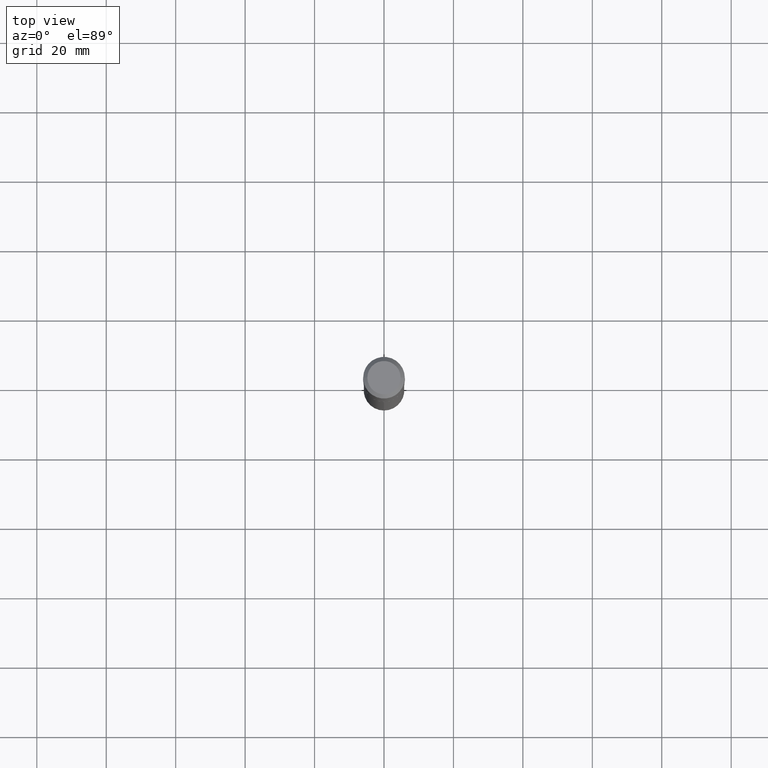
[diagram: clean part render]
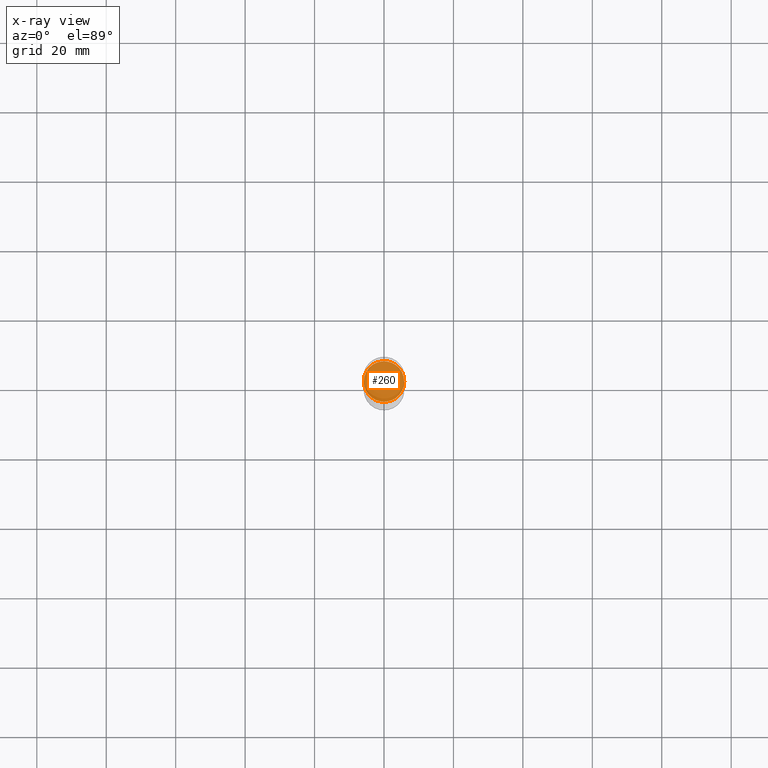
[diagram: x-ray — body ghosted, one internal face saturated and labeled with its STEP entity id]
A machine part, top view, then the same camera in x-ray: the body is ghosted and one INTERNAL B-rep face — a face not visible from any outside direction — is saturated and labeled: STEP entity #260.
In plain terms, the highlighted planar face has unit normal (-0, 0, 1).
Its self-contained STEP definition (entity closure, byte-faithful):
#18 = DIRECTION ( 'NONE',  ( -2.438088387897960049E-29, 3.491481338843145188E-15, 1.000000000000000000 ) ) ;
#21 = AXIS2_PLACEMENT_3D ( 'NONE', #272, #52, #421 ) ;
#37 = EDGE_CURVE ( 'NONE', #128, #198, #335, .T. ) ;
#46 = EDGE_CURVE ( 'NONE', #198, #128, #297, .T. ) ;
#48 = ORIENTED_EDGE ( 'NONE', *, *, #46, .F. ) ;
#52 = DIRECTION ( 'NONE',  ( -2.445468806185136597E-29, 3.491481338843145583E-15, 1.000000000000000000 ) ) ;
#92 = DIRECTION ( 'NONE',  ( 1.000000000000000000, -6.982962677686267499E-15, 0.000000000000000000 ) ) ;
#94 = CARTESIAN_POINT ( 'NONE',  ( 0.2298000000000000043, -1.061584901075258209E-14, -2.580900000000001082 ) ) ;
#124 = AXIS2_PLACEMENT_3D ( 'NONE', #358, #18, #318 ) ;
#128 = VERTEX_POINT ( 'NONE', #94 ) ;
#160 = CARTESIAN_POINT ( 'NONE',  ( -0.2298000000000000043, -7.375687753469456961E-15, -2.580900000000001082 ) ) ;
#164 = AXIS2_PLACEMENT_3D ( 'NONE', #347, #196, #92 ) ;
#196 = DIRECTION ( 'NONE',  ( -2.445468806185136597E-29, 3.491481338843145583E-15, 1.000000000000000000 ) ) ;
#198 = VERTEX_POINT ( 'NONE', #160 ) ;
#203 = FACE_OUTER_BOUND ( 'NONE', #474, .T. ) ;
#260 = ADVANCED_FACE ( 'NONE', ( #203 ), #467, .F. ) ;
#272 = CARTESIAN_POINT ( 'NONE',  ( 6.311510441883220673E-29, -9.011164187420277631E-15, -2.580900000000001082 ) ) ;
#297 = CIRCLE ( 'NONE', #164, 0.2298000000000000043 ) ;
#318 = DIRECTION ( 'NONE',  ( 1.000000000000000000, -6.982962677686265922E-15, 4.876176775795935793E-29 ) ) ;
#335 = CIRCLE ( 'NONE', #21, 0.2298000000000000043 ) ;
#347 = CARTESIAN_POINT ( 'NONE',  ( 6.311510441883220673E-29, -9.011164187420277631E-15, -2.580900000000001082 ) ) ;
#358 = CARTESIAN_POINT ( 'NONE',  ( 6.311510441883220673E-29, -9.011164187420277631E-15, -2.580900000000001082 ) ) ;
#363 = ORIENTED_EDGE ( 'NONE', *, *, #37, .F. ) ;
#421 = DIRECTION ( 'NONE',  ( 1.000000000000000000, -6.982962677686267499E-15, 0.000000000000000000 ) ) ;
#467 = PLANE ( 'NONE',  #124 ) ;
#474 = EDGE_LOOP ( 'NONE', ( #363, #48 ) ) ;